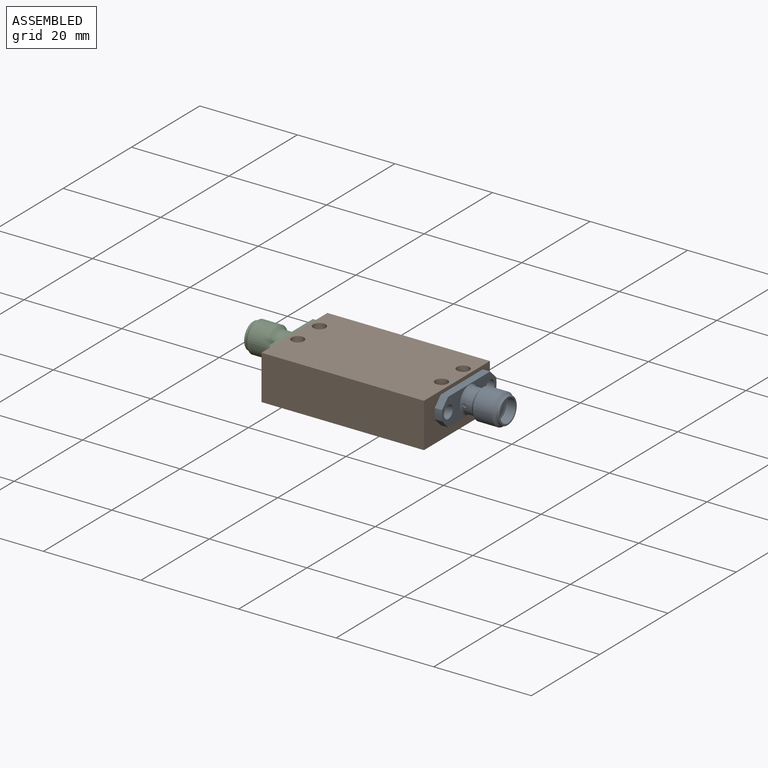
[diagram: assembled view]
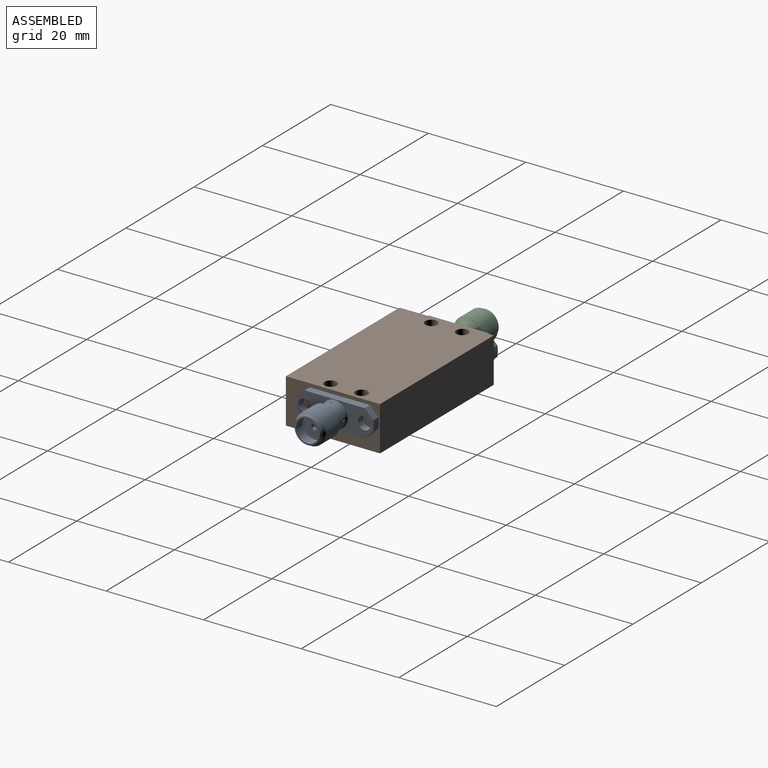
[diagram: assembled view, second angle]
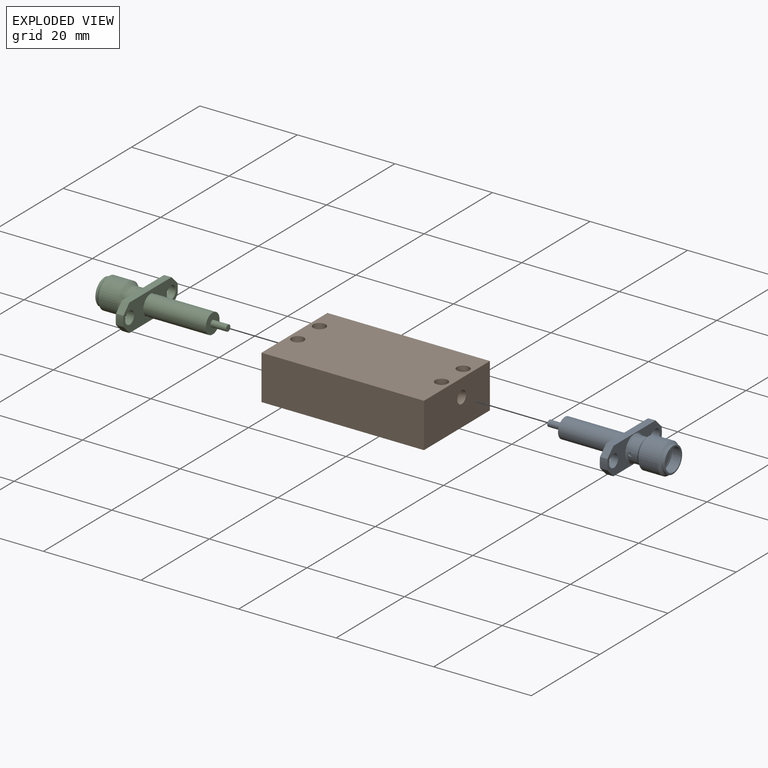
[diagram: exploded view]
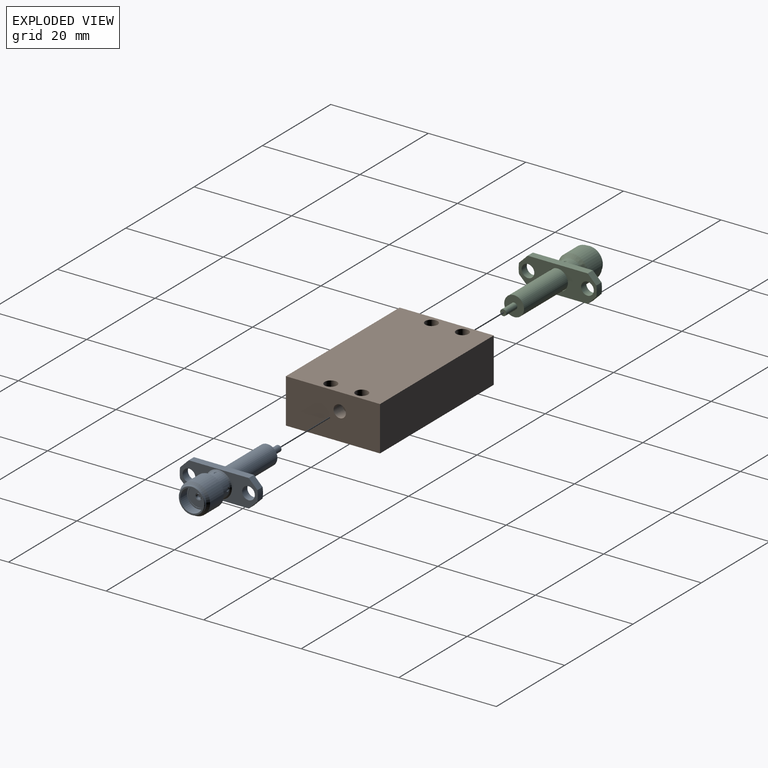
[diagram: exploded view, second angle]
ASSEMBLY  parts=3 mates=6
PART A: 94 faces, bbox 25.4x16x6.3 mm
  f0: cylinder r=0.64mm len=13.05mm, axis (1,0,0), area 26.4mm2, adj f88,f89,f90
  f1: cone r=2.05mm half-angle=15deg, axis (1,0,0), area 1.3mm2, adj f81,f82,f84
  f2: cylinder r=1.3mm len=2.6mm, axis (-1,0,0), area 6.2mm2, adj f3,f73,f81
  f3: cylinder r=1.3mm len=2.6mm, axis (-1,0,0), area 6.2mm2, adj f2,f73,f81
  f4: cylinder r=1.3mm len=2.6mm, axis (-1,0,0), area 6.2mm2, adj f5,f73,f81
  f5: cylinder r=1.3mm len=2.6mm, axis (-1,0,0), area 6.2mm2, adj f4,f73,f81
  f6: cylinder r=2.32mm len=0.56mm, axis (1,0,0), area 0mm2, adj f7,f8
  f7: cone r=0.28mm half-angle=41.5deg, axis (0,-1,0), area 0.1mm2, adj f6,f8,f10
  f8: cone r=0.28mm half-angle=41.5deg, axis (0,-1,0), area 0.1mm2, adj f6,f7,f9
  f9: torus R=0.5mm, axis (0,1,0), area 0.1mm2, adj f8,f10,f69
  f10: torus R=0.5mm, axis (0,1,0), area 0.1mm2, adj f7,f9,f69
  f11: cylinder r=2.32mm len=0.56mm, axis (1,0,0), area 0mm2, adj f12,f13
  f12: cone r=0.28mm half-angle=41.5deg, axis (0,1,0), area 0.1mm2, adj f11,f13,f15
  f13: cone r=0.28mm half-angle=41.5deg, axis (0,1,0), area 0.1mm2, adj f11,f12,f14
  f14: torus R=0.5mm, axis (0,-1,0), area 0.1mm2, adj f13,f15,f68
  f15: torus R=0.5mm, axis (0,-1,0), area 0.1mm2, adj f12,f14,f68
  f16: cylinder r=2.32mm len=0.59mm, axis (1,0,0), area 0.2mm2, adj f17,f18
  f17: cone r=0.28mm half-angle=41.5deg, axis (0,0,-1), area 0.1mm2, adj f16,f18,f19,f20
  f18: cone r=0.28mm half-angle=41.5deg, axis (0,0,-1), area 0.1mm2, adj f16,f17,f19,f20
  f19: torus R=0.5mm, axis (0,0,1), area 0.1mm2, adj f17,f18,f20,f68,f69
  f20: torus R=0.5mm, axis (0,0,1), area 0.1mm2, adj f17,f18,f19,f68,f69
  f21: plane 0.56x0.16mm, normal (0.04,-0.5,-0.87), area 0.1mm2, adj f22,f23,f25,f26,f40
  f22: cone r=0.39mm half-angle=2.5deg, axis (1,0,0), area 0.3mm2, adj f21,f23,f24,f40
  f23: cone r=0.39mm half-angle=27.5deg, axis (-1,0,0), area 0.2mm2, adj f21,f22,f24,f25
  f24: plane 0.56x0.18mm, normal (0.04,-1,0), area 0.1mm2, adj f22,f23,f25,f26,f40
  f25: cone r=0.48mm half-angle=87.5deg, axis (-1,0,0), area 0.1mm2, adj f21,f23,f24,f26
  f26: cone r=0.55mm half-angle=2.5deg, axis (1,0,0), area 0.6mm2, adj f21,f24,f25,f40
  f27: cone r=0.39mm half-angle=2.5deg, axis (1,0,0), area 0.3mm2, adj f28,f29,f31,f40
  f28: cone r=0.39mm half-angle=27.5deg, axis (-1,0,0), area 0.2mm2, adj f27,f29,f30,f31
  f29: plane 0.56x0.15mm, normal (0.04,0.5,0.87), area 0.1mm2, adj f27,f28,f30,f32,f40
  f30: cone r=0.48mm half-angle=87.5deg, axis (-1,0,0), area 0.1mm2, adj f28,f29,f31,f32
  f31: plane 0.56x0.15mm, normal (0.04,-0.5,0.86), area 0.1mm2, adj f27,f28,f30,f32,f40
  f32: cone r=0.55mm half-angle=2.5deg, axis (1,0,0), area 0.6mm2, adj f29,f30,f31,f40
  f33: cone r=0.39mm half-angle=2.5deg, axis (1,0,0), area 0.3mm2, adj f34,f35,f37,f40
  f34: cone r=0.39mm half-angle=27.5deg, axis (-1,0,0), area 0.2mm2, adj f33,f35,f36,f37
  f35: plane 0.56x0.16mm, normal (0.04,0.5,-0.86), area 0.1mm2, adj f33,f34,f36,f38,f40
  f36: cone r=0.48mm half-angle=87.5deg, axis (-1,0,0), area 0.1mm2, adj f34,f35,f37,f38
  f37: plane 0.56x0.18mm, normal (0.04,1,0), area 0.1mm2, adj f33,f34,f36,f38,f40
  f38: cone r=0.55mm half-angle=2.5deg, axis (1,0,0), area 0.6mm2, adj f35,f36,f37,f40
  f39: cylinder r=0.64mm len=1.29mm, axis (1,0,0), area 1.1mm2, adj f40,f41,f43
  f40: plane 1.29x1.29mm, normal (-1,0,0), area 0.8mm2, adj f21,f22,f24,f26,f27,f29,f31,f32
  f41: cylinder r=0.64mm len=1.29mm, axis (1,0,0), area 1.1mm2, adj f39,f40,f43
  f42: cylinder r=2.03mm len=4.06mm, axis (1,0,0), area 3.5mm2, adj f43,f44,f46
  f43: plane 4.06x4.06mm, normal (-1,0,0), area 11.6mm2, adj f39,f41,f42,f44
  f44: cylinder r=2.03mm len=4.06mm, axis (1,0,0), area 3.5mm2, adj f42,f43,f46
  f45: cylinder r=2.05mm len=4.1mm, axis (1,0,0), area 4mm2, adj f46,f47,f50
  f46: plane 4.1x4.1mm, normal (-1,0,0), area 0.3mm2, adj f42,f44,f45,f47
  f47: cylinder r=2.05mm len=4.1mm, axis (1,0,0), area 4mm2, adj f45,f46,f49
  f48: cylinder r=2.31mm len=4.61mm, axis (1,0,0), area 14.1mm2, adj f49,f51,f52
  f49: cone r=2.05mm half-angle=85deg, axis (1,0,0), area 1.8mm2, adj f47,f48,f50
  f50: cone r=2.05mm half-angle=85deg, axis (1,0,0), area 1.8mm2, adj f45,f49,f51
  f51: cylinder r=2.31mm len=4.61mm, axis (1,0,0), area 14.1mm2, adj f48,f50,f52
  f52: plane 5.19x5.19mm, normal (-1,0,0), area 4.5mm2, adj f48,f51,f53,f55
  f53: cone r=2.6mm half-angle=45deg, axis (1,0,0), area 0.9mm2, adj f52,f54,f55,f56
  f54: cylinder r=2.67mm len=5.35mm, axis (1,0,0), area 3.5mm2, adj f53,f55,f56,f60
  f55: cone r=2.6mm half-angle=45deg, axis (1,0,0), area 0.9mm2, adj f52,f53,f54,f56
  f56: cylinder r=2.67mm len=5.35mm, axis (1,0,0), area 3.5mm2, adj f53,f54,f55,f59
  f57: cone r=2.45mm half-angle=45deg, axis (-1,0,0), area 8.4mm2, adj f58,f62,f69
  f58: cylinder r=3.13mm len=6.26mm, axis (1,0,0), area 39.5mm2, adj f57,f59,f61
  f59: cone r=2.67mm half-angle=45deg, axis (1,0,0), area 5.9mm2, adj f56,f58,f60
  f60: cone r=2.67mm half-angle=45deg, axis (1,0,0), area 5.9mm2, adj f54,f59,f61
  f61: cylinder r=3.13mm len=6.26mm, axis (1,0,0), area 39.5mm2, adj f58,f60,f62
  f62: cone r=2.45mm half-angle=45deg, axis (-1,0,0), area 8.4mm2, adj f57,f61,f68
  f63: cylinder r=2.32mm len=0.59mm, axis (1,0,0), area 0.2mm2, adj f64,f65
  f64: cone r=0.28mm half-angle=41.5deg, axis (0,0,1), area 0.1mm2, adj f63,f65,f66,f67
  f65: cone r=0.28mm half-angle=41.5deg, axis (0,0,1), area 0.1mm2, adj f63,f64,f66,f67
  f66: torus R=0.5mm, axis (0,0,-1), area 0.1mm2, adj f64,f65,f67,f68,f69
  f67: torus R=0.5mm, axis (0,0,-1), area 0.1mm2, adj f64,f65,f66,f68,f69
  f68: cylinder r=2.45mm len=4.9mm, axis (1,0,0), area 14.6mm2, adj f14,f15,f19,f20,f62,f66,f67,f69
  f69: cylinder r=2.45mm len=4.9mm, axis (1,0,0), area 14.6mm2, adj f9,f10,f19,f20,f57,f66,f67,f68
  f70: cone r=2.45mm half-angle=45deg, axis (1,0,0), area 2.9mm2, adj f69,f71,f73
  f71: cone r=2.45mm half-angle=45deg, axis (1,0,0), area 2.9mm2, adj f68,f70,f73
  f72: plane 1.78x1.78mm, normal (0,-0.71,-0.71), area 3.8mm2, adj f73,f74,f80,f81
  f73: plane 16x5.65mm, normal (-1,0,0), area 50mm2, adj f2,f3,f4,f5,f70,f71,f72,f74
  f74: cylinder r=8mm len=2.1mm, axis (1,0,0), area 3.2mm2, adj f72,f73,f75,f81
  f75: plane 1.78x1.78mm, normal (0,-0.71,0.71), area 3.8mm2, adj f73,f74,f76,f81
  f76: plane 12.31x1.53mm, normal (0,0,1), area 18.8mm2, adj f73,f75,f77,f81
  f77: plane 1.78x1.78mm, normal (0,0.71,0.71), area 3.8mm2, adj f73,f76,f78,f81
  f78: cylinder r=8mm len=2.1mm, axis (1,0,0), area 3.2mm2, adj f73,f77,f79,f81
  f79: plane 1.78x1.78mm, normal (0,0.71,-0.71), area 3.8mm2, adj f73,f78,f80,f81
  f80: plane 12.31x1.53mm, normal (0,0,-1), area 18.8mm2, adj f72,f73,f79,f81
  f81: plane 16x5.65mm, normal (1,0,0), area 59mm2, adj f1,f2,f3,f4,f5,f72,f74,f75
  f82: cone r=2.05mm half-angle=15deg, axis (1,0,0), area 1.3mm2, adj f1,f81,f83
  f83: cylinder r=2.05mm len=4.1mm, axis (1,0,0), area 0.7mm2, adj f82,f84,f85
  f84: cylinder r=2.05mm len=4.1mm, axis (1,0,0), area 0.7mm2, adj f1,f83,f85
  f85: plane 4.1x4.1mm, normal (1,0,0), area 0.3mm2, adj f83,f84,f86,f87
  f86: cylinder r=2.03mm len=13.05mm, axis (1,0,0), area 83.2mm2, adj f85,f87,f88
  f87: cylinder r=2.03mm len=13.05mm, axis (1,0,0), area 83.2mm2, adj f85,f86,f88
  f88: plane 4.06x4.06mm, normal (1,0,0), area 11.6mm2, adj f0,f86,f87,f89
  f89: cylinder r=0.64mm len=13.05mm, axis (1,0,0), area 26.4mm2, adj f0,f88,f90
  f90: plane 1.29x1.29mm, normal (1,0,0), area 0mm2, adj f0,f89,f91,f92
  f91: cylinder r=0.64mm len=16.23mm, axis (1,0,0), area 32.5mm2, adj f90,f92,f93
  f92: cylinder r=0.64mm len=16.23mm, axis (1,0,0), area 32.5mm2, adj f90,f91,f93
  f93: plane 1.28x1.28mm, normal (1,0,0), area 1.3mm2, adj f91,f92
PART B: 22 faces, bbox 33.3x19.3x9.1 mm
  f0: plane 33.3x19.3mm, normal (0,0,-1), area 612.6mm2, adj f2,f3,f4,f5,f10,f12,f14,f16
  f1: plane 33.3x19.3mm, normal (0,0,1), area 622.5mm2, adj f2,f3,f4,f5,f18,f19,f20,f21
  f2: plane 19.3x9.14mm, normal (-1,0,0), area 171.4mm2, adj f0,f1,f3,f5,f6
  f3: plane 33.3x9.14mm, normal (0,-1,0), area 304.5mm2, adj f0,f1,f2,f4
  f4: plane 19.3x9.14mm, normal (1,0,0), area 171.4mm2, adj f0,f1,f3,f5,f8
  f5: plane 33.3x9.14mm, normal (0,1,0), area 304.5mm2, adj f0,f1,f2,f4
  f6: cylinder r=1.27mm len=2.54mm, axis (-1,0,0), area 20.3mm2, adj f2,f7
  f7: plane 2.54x2.54mm, normal (-1,0,0), area 5.1mm2, adj f6
  f8: cylinder r=1.27mm len=2.54mm, axis (1,0,0), area 20.3mm2, adj f4,f9
  f9: plane 2.54x2.54mm, normal (1,0,0), area 5.1mm2, adj f8
  f10: cylinder r=0.89mm len=2.54mm, axis (0,0,-1), area 14.2mm2, adj f0,f11
  f11: cone r=0mm half-angle=59deg, axis (0,0,-1), area 2.9mm2, adj f10
  f12: cylinder r=0.89mm len=2.54mm, axis (0,0,-1), area 14.2mm2, adj f0,f13
  f13: cone r=0mm half-angle=59deg, axis (0,0,-1), area 2.9mm2, adj f12
  f14: cylinder r=0.89mm len=2.54mm, axis (0,0,-1), area 14.2mm2, adj f0,f15
  f15: cone r=0mm half-angle=59deg, axis (0,0,-1), area 2.9mm2, adj f14
  f16: cylinder r=0.89mm len=2.54mm, axis (0,0,-1), area 14.2mm2, adj f0,f17
  f17: cone r=0mm half-angle=59deg, axis (0,0,-1), area 2.9mm2, adj f16
  f18: cylinder r=1.27mm len=9.14mm, axis (0,0,-1), area 73mm2, adj f0,f1
  f19: cylinder r=1.27mm len=9.14mm, axis (0,0,-1), area 73mm2, adj f0,f1
  f20: cylinder r=1.27mm len=9.14mm, axis (0,0,-1), area 73mm2, adj f0,f1
  f21: cylinder r=1.27mm len=9.14mm, axis (0,0,-1), area 73mm2, adj f0,f1
PART C: same geometry as A
PLACE A rot(axis=(0,1,0),180deg) t=(17.88,-0.88,3.07)mm
PLACE B t=(-6.32,-2.28,2.06)mm fixed
PLACE C t=(-30.51,-0.88,3.07)mm
MATE cylindrical C.f0 <-> B.f8  axis (1,0,0) through (-22.97,-0.88,3.07)mm
MATE planar B.f6 <-> A.f0  axis (1,0,0) through (10.33,-0.88,3.07)mm
MATE parallel B.f1 <-> C.f76  axis (0,0,1) through (-22.97,-2.28,6.63)mm
MATE parallel A.f80 <-> B.f1  axis (0,0,1) through (10.33,-0.88,5.9)mm
MATE planar B.f8 <-> C.f0  axis (-1,0,0) through (-22.97,-0.88,3.07)mm
MATE cylindrical A.f0 <-> B.f6  axis (-1,0,0) through (10.33,-0.88,3.07)mm
